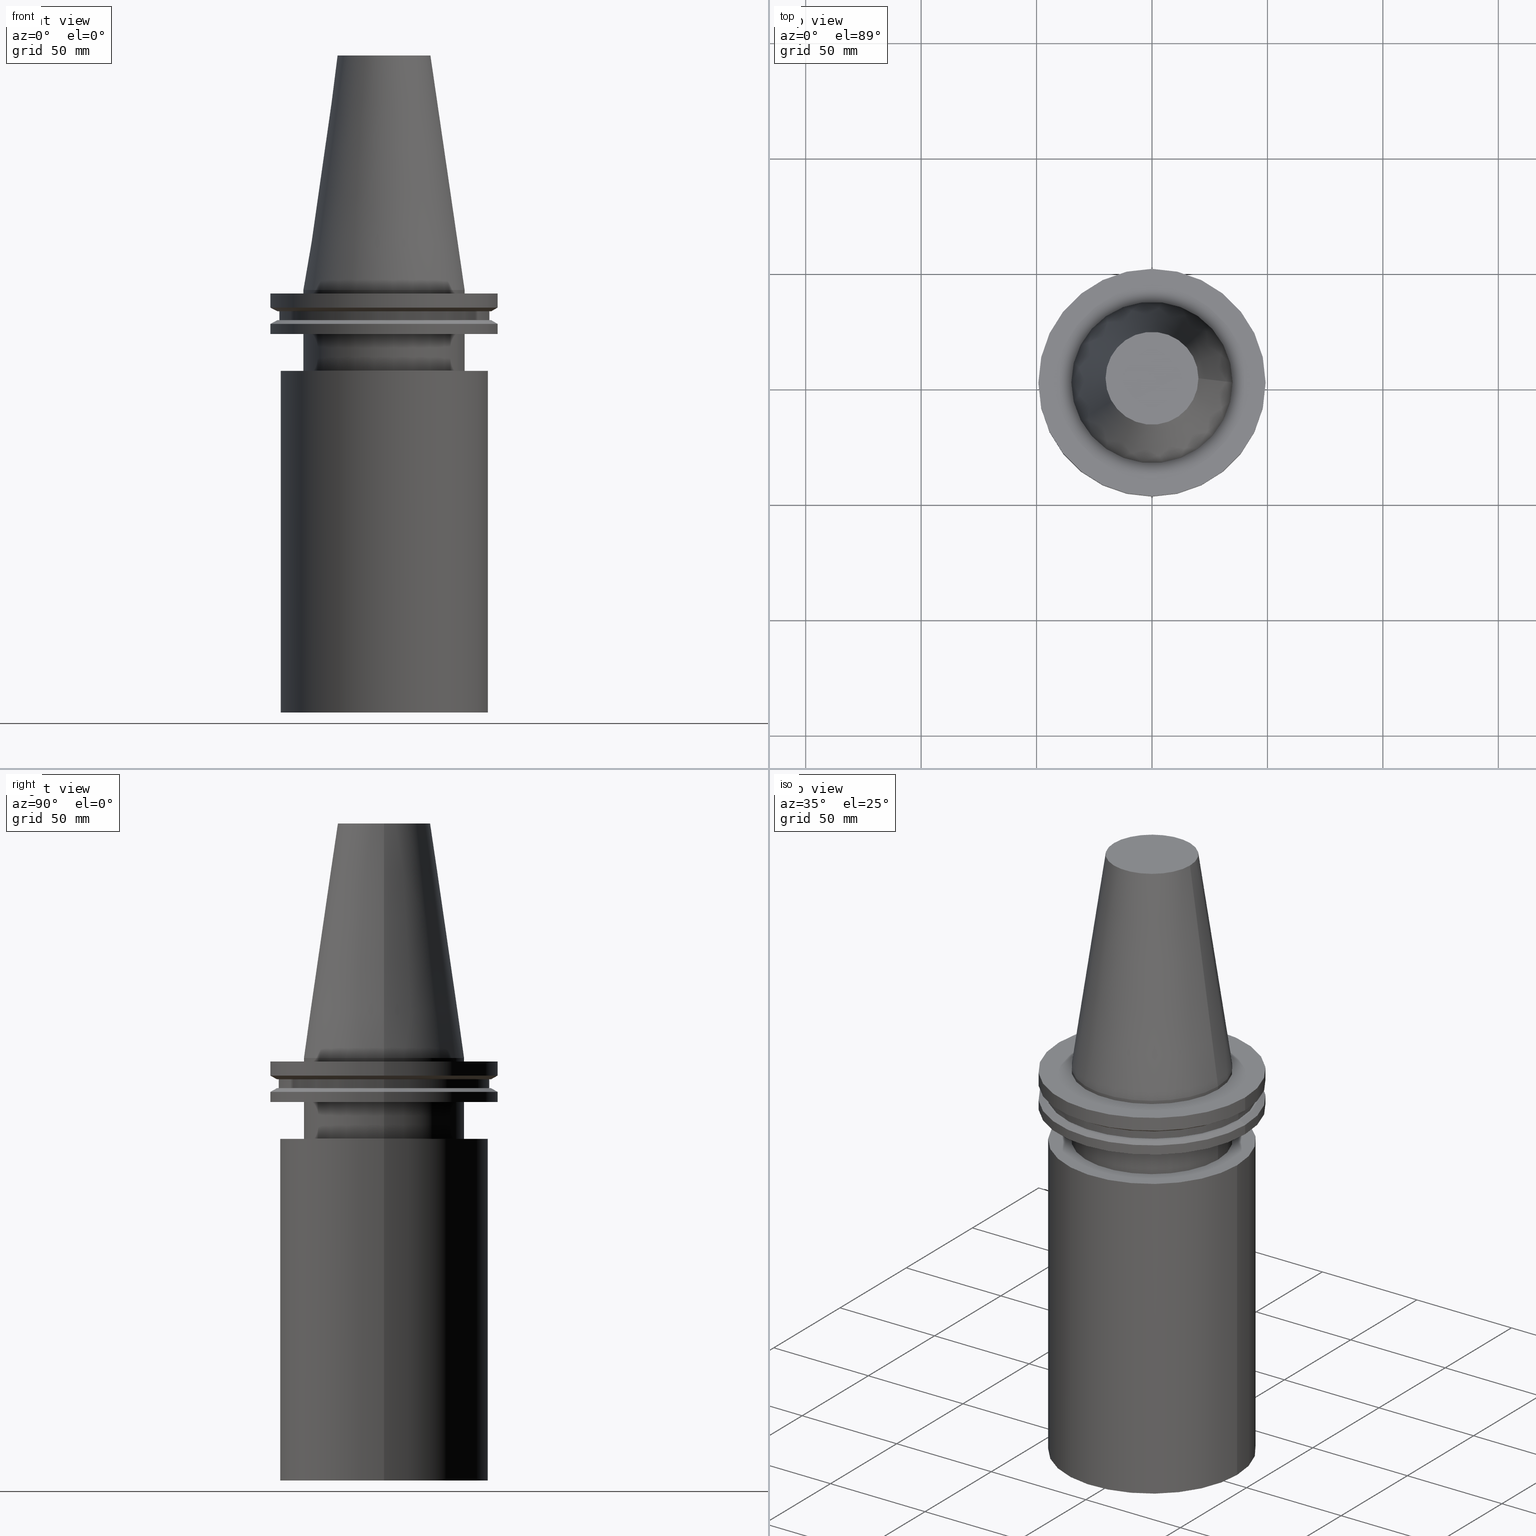
[diagram: canonical four-view strip — front | top / right | iso, engineering-drawing reading convention]
A machine part, canonical four-view strip (front | top / right | iso — engineering-drawing reading convention). The complete STEP part file that produces these views, byte-faithful:
ISO-10303-21;
HEADER;
FILE_DESCRIPTION (( 'STEP AP203' ),
    '1' );
FILE_NAME ('11.326.676.stp',
    '2022-03-09T15:01:14',
    ( '' ),
    ( '' ),
    'SwSTEP 2.0',
    'SolidWorks 2021',
    '' );
FILE_SCHEMA (( 'CONFIG_CONTROL_DESIGN' ));
ENDSEC;

DATA;
#1 = ORIENTED_EDGE ( 'NONE', *, *, #137, .T. ) ;
#2 = APPLICATION_PROTOCOL_DEFINITION ( 'international standard', 'config_control_design', 1994, #202 ) ;
#3 = DATE_TIME_ROLE ( 'creation_date' ) ;
#4 = APPROVAL_PERSON_ORGANIZATION ( #283, #140, #226 ) ;
#5 = EDGE_LOOP ( 'NONE', ( #182 ) ) ;
#6 = CARTESIAN_POINT ( 'NONE',  ( 45.64500000000000313, 0.000000000000000000, -13.05499999999999794 ) ) ;
#7 = FACE_OUTER_BOUND ( 'NONE', #145, .T. ) ;
#8 = VERTEX_POINT ( 'NONE', #158 ) ;
#9 = CYLINDRICAL_SURFACE ( 'NONE', #379, 45.00000000000000000 ) ;
#10 = FACE_OUTER_BOUND ( 'NONE', #5, .T. ) ;
#11 = CALENDAR_DATE ( 2022, 9, 3 ) ;
#12 = DIRECTION ( 'NONE',  ( -0.000000000000000000, -0.000000000000000000, 1.000000000000000000 ) ) ;
#13 = CARTESIAN_POINT ( 'NONE',  ( 0.000000000000000000, 0.000000000000000000, 101.5999999999999943 ) ) ;
#14 = CIRCLE ( 'NONE', #388, 45.00000000000000000 ) ;
#15 = FACE_OUTER_BOUND ( 'NONE', #353, .T. ) ;
#16 = COORDINATED_UNIVERSAL_TIME_OFFSET ( 6, 0, .BEHIND. ) ;
#17 = CYLINDRICAL_SURFACE ( 'NONE', #236, 34.92499999999999716 ) ;
#18 = DIRECTION ( 'NONE',  ( 1.000000000000000000, 0.000000000000000000, 0.000000000000000000 ) ) ;
#19 = EDGE_LOOP ( 'NONE', ( #91 ) ) ;
#20 = CLOSED_SHELL ( 'NONE', ( #390, #48, #323, #345, #354, #28, #67, #192, #35, #370, #96, #165, #288, #232, #60, #385 ) ) ;
#21 = ORIENTED_EDGE ( 'NONE', *, *, #377, .T. ) ;
#22 = DIRECTION ( 'NONE',  ( 1.000000000000000000, 0.000000000000000000, 0.000000000000000000 ) ) ;
#23 = EDGE_LOOP ( 'NONE', ( #293 ) ) ;
#24 = LOCAL_TIME ( 9, 1, 14.00000000000000000, #285 ) ;
#25 = DIRECTION ( 'NONE',  ( -0.000000000000000000, -0.000000000000000000, 1.000000000000000000 ) ) ;
#26 = EDGE_LOOP ( 'NONE', ( #175 ) ) ;
#27 = DIRECTION ( 'NONE',  ( -0.000000000000000000, -0.000000000000000000, 1.000000000000000000 ) ) ;
#28 = ADVANCED_FACE ( 'NONE', ( #334, #180 ), #298, .T. ) ;
#29 = PLANE ( 'NONE',  #113 ) ;
#30 = ORIENTED_EDGE ( 'NONE', *, *, #240, .F. ) ;
#31 = VERTEX_POINT ( 'NONE', #309 ) ;
#32 = AXIS2_PLACEMENT_3D ( 'NONE', #292, #92, #395 ) ;
#33 =( GEOMETRIC_REPRESENTATION_CONTEXT ( 3 ) GLOBAL_UNCERTAINTY_ASSIGNED_CONTEXT ( ( #342 ) ) GLOBAL_UNIT_ASSIGNED_CONTEXT ( ( #272, #333, #217 ) ) REPRESENTATION_CONTEXT ( 'NONE', 'WORKASPACE' ) );
#34 = EDGE_LOOP ( 'NONE', ( #391 ) ) ;
#35 = ADVANCED_FACE ( 'NONE', ( #7, #59 ), #68, .F. ) ;
#36 = PERSON_AND_ORGANIZATION_ROLE ( 'design_owner' ) ;
#37 = DIRECTION ( 'NONE',  ( -1.000000000000000000, 0.000000000000000000, -0.000000000000000000 ) ) ;
#38 = VERTEX_POINT ( 'NONE', #181 ) ;
#39 = DIRECTION ( 'NONE',  ( 1.000000000000000000, 0.000000000000000000, 0.000000000000000000 ) ) ;
#40 = FACE_BOUND ( 'NONE', #19, .T. ) ;
#41 = APPROVAL_DATE_TIME ( #381, #115 ) ;
#42 = EDGE_CURVE ( 'NONE', #384, #384, #223, .T. ) ;
#43 = DIRECTION ( 'NONE',  ( 1.000000000000000000, 0.000000000000000000, 0.000000000000000000 ) ) ;
#44 = CARTESIAN_POINT ( 'NONE',  ( 0.000000000000000000, 0.000000000000000000, 101.5999999999999943 ) ) ;
#45 = CIRCLE ( 'NONE', #107, 49.21500000000000341 ) ;
#46 = DIRECTION ( 'NONE',  ( -0.000000000000000000, -0.000000000000000000, 1.000000000000000000 ) ) ;
#47 = AXIS2_PLACEMENT_3D ( 'NONE', #258, #297, #201 ) ;
#48 = ADVANCED_FACE ( 'NONE', ( #154 ), #29, .F. ) ;
#49 = PERSON ( 'UNSPECIFIED', 'UNSPECIFIED', 'UNSPECIFIED', ('UNSPECIFIED'), ('UNSPECIFIED'), ('UNSPECIFIED') ) ;
#50 = FACE_OUTER_BOUND ( 'NONE', #296, .T. ) ;
#51 = CC_DESIGN_DATE_AND_TIME_ASSIGNMENT ( #160, #3, ( #275 ) ) ;
#52 = AXIS2_PLACEMENT_3D ( 'NONE', #122, #362, #93 ) ;
#53 = AXIS2_PLACEMENT_3D ( 'NONE', #237, #328, #18 ) ;
#54 = PRODUCT_DEFINITION_SHAPE ( 'NONE', 'NONE',  #275 ) ;
#55 = ORIENTED_EDGE ( 'NONE', *, *, #186, .T. ) ;
#56 = DIRECTION ( 'NONE',  ( -0.000000000000000000, -0.000000000000000000, 1.000000000000000000 ) ) ;
#57 = EDGE_LOOP ( 'NONE', ( #183 ) ) ;
#58 = CARTESIAN_POINT ( 'NONE',  ( 0.000000000000000000, 0.000000000000000000, -1.499999999999987566 ) ) ;
#59 = FACE_BOUND ( 'NONE', #299, .T. ) ;
#60 = ADVANCED_FACE ( 'NONE', ( #103, #161 ), #9, .T. ) ;
#61 = CC_DESIGN_SECURITY_CLASSIFICATION ( #132, ( #102 ) ) ;
#62 = FACE_BOUND ( 'NONE', #327, .T. ) ;
#63 = EDGE_LOOP ( 'NONE', ( #30 ) ) ;
#64 = COORDINATED_UNIVERSAL_TIME_OFFSET ( 6, 0, .BEHIND. ) ;
#65 = ORIENTED_EDGE ( 'NONE', *, *, #172, .T. ) ;
#66 = MECHANICAL_CONTEXT ( 'NONE', #202, 'mechanical' ) ;
#67 = ADVANCED_FACE ( 'NONE', ( #318, #106 ), #215, .F. ) ;
#68 = PLANE ( 'NONE',  #281 ) ;
#69 = CIRCLE ( 'NONE', #289, 45.00000000000000000 ) ;
#70 = DIRECTION ( 'NONE',  ( 0.000000000000000000, 0.000000000000000000, 1.000000000000000000 ) ) ;
#71 = AXIS2_PLACEMENT_3D ( 'NONE', #198, #27, #234 ) ;
#72 = CARTESIAN_POINT ( 'NONE',  ( 0.000000000000000000, 0.000000000000000000, -13.05499999999999794 ) ) ;
#73 = VERTEX_POINT ( 'NONE', #187 ) ;
#74 = DIRECTION ( 'NONE',  ( -0.000000000000000000, -0.000000000000000000, 1.000000000000000000 ) ) ;
#75 = CARTESIAN_POINT ( 'NONE',  ( 0.000000000000000000, 0.000000000000000000, -7.602389855251287187 ) ) ;
#76 = AXIS2_PLACEMENT_3D ( 'NONE', #252, #375, #104 ) ;
#77 = DIRECTION ( 'NONE',  ( -1.000000000000000000, 0.000000000000000000, -0.000000000000000000 ) ) ;
#78 = DIRECTION ( 'NONE',  ( 1.000000000000000000, 0.000000000000000000, 0.000000000000000000 ) ) ;
#79 = EDGE_CURVE ( 'NONE', #205, #205, #138, .T. ) ;
#80 = DIRECTION ( 'NONE',  ( 0.000000000000000000, -0.000000000000000000, 1.000000000000000000 ) ) ;
#81 = COORDINATED_UNIVERSAL_TIME_OFFSET ( 6, 0, .BEHIND. ) ;
#82 = CIRCLE ( 'NONE', #372, 49.21499999999999631 ) ;
#83 = DIRECTION ( 'NONE',  ( 1.000000000000000000, 0.000000000000000000, 0.000000000000000000 ) ) ;
#84 = APPROVAL ( #220, 'UNSPECIFIED' ) ;
#85 = CC_DESIGN_APPROVAL ( #140, ( #132 ) ) ;
#86 = ORIENTED_EDGE ( 'NONE', *, *, #42, .T. ) ;
#87 = EDGE_CURVE ( 'NONE', #176, #176, #14, .T. ) ;
#88 = AXIS2_PLACEMENT_3D ( 'NONE', #121, #56, #83 ) ;
#89 = DIRECTION ( 'NONE',  ( 1.000000000000000000, 0.000000000000000000, 0.000000000000000000 ) ) ;
#90 = DIRECTION ( 'NONE',  ( -0.000000000000000000, -0.000000000000000000, 1.000000000000000000 ) ) ;
#91 = ORIENTED_EDGE ( 'NONE', *, *, #42, .F. ) ;
#92 = DIRECTION ( 'NONE',  ( -0.000000000000000000, -0.000000000000000000, 1.000000000000000000 ) ) ;
#93 = DIRECTION ( 'NONE',  ( 1.000000000000000000, 0.000000000000000000, 0.000000000000000000 ) ) ;
#94 = APPROVAL_DATE_TIME ( #363, #84 ) ;
#95 = EDGE_LOOP ( 'NONE', ( #1 ) ) ;
#96 = ADVANCED_FACE ( 'NONE', ( #15, #10 ), #136, .T. ) ;
#97 = PERSON_AND_ORGANIZATION_ROLE ( 'creator' ) ;
#98 = ORIENTED_EDGE ( 'NONE', *, *, #79, .F. ) ;
#99 = MANIFOLD_SOLID_BREP ( 'CKB', #20 ) ;
#100 = ORIENTED_EDGE ( 'NONE', *, *, #109, .T. ) ;
#101 = VERTEX_POINT ( 'NONE', #367 ) ;
#102 = PRODUCT_DEFINITION_FORMATION_WITH_SPECIFIED_SOURCE ( 'ANY', '', #300, .NOT_KNOWN. ) ;
#103 = FACE_OUTER_BOUND ( 'NONE', #332, .T. ) ;
#104 = DIRECTION ( 'NONE',  ( -1.000000000000000000, 0.000000000000000000, -0.000000000000000000 ) ) ;
#105 = PERSON_AND_ORGANIZATION ( #49, #356 ) ;
#106 = FACE_OUTER_BOUND ( 'NONE', #213, .T. ) ;
#107 = AXIS2_PLACEMENT_3D ( 'NONE', #75, #153, #151 ) ;
#108 = CARTESIAN_POINT ( 'NONE',  ( 0.000000000000000000, 0.000000000000000000, -35.00000000000000000 ) ) ;
#109 = EDGE_CURVE ( 'NONE', #351, #351, #208, .T. ) ;
#110 = CYLINDRICAL_SURFACE ( 'NONE', #150, 49.21499999999998920 ) ;
#111 = FACE_OUTER_BOUND ( 'NONE', #34, .T. ) ;
#112 = CALENDAR_DATE ( 2022, 9, 3 ) ;
#113 = AXIS2_PLACEMENT_3D ( 'NONE', #248, #167, #37 ) ;
#114 = ORIENTED_EDGE ( 'NONE', *, *, #87, .F. ) ;
#115 = APPROVAL ( #212, 'UNSPECIFIED' ) ;
#116 = DIRECTION ( 'NONE',  ( -0.000000000000000000, -0.000000000000000000, 1.000000000000000000 ) ) ;
#117 = CIRCLE ( 'NONE', #273, 46.43919780457007818 ) ;
#118 = CIRCLE ( 'NONE', #393, 20.10819343178871321 ) ;
#119 = DIRECTION ( 'NONE',  ( 1.000000000000000000, 0.000000000000000000, 0.000000000000000000 ) ) ;
#120 = ORIENTED_EDGE ( 'NONE', *, *, #304, .F. ) ;
#121 = CARTESIAN_POINT ( 'NONE',  ( 0.000000000000000000, 0.000000000000000000, 101.5999999999999943 ) ) ;
#122 = CARTESIAN_POINT ( 'NONE',  ( 0.000000000000000000, 0.000000000000000000, -1.499999999999987566 ) ) ;
#123 = PERSON_AND_ORGANIZATION ( #49, #356 ) ;
#124 = PERSON_AND_ORGANIZATION ( #49, #356 ) ;
#125 = ORIENTED_EDGE ( 'NONE', *, *, #338, .F. ) ;
#126 = VERTEX_POINT ( 'NONE', #129 ) ;
#127 = ORIENTED_EDGE ( 'NONE', *, *, #377, .F. ) ;
#128 = DESIGN_CONTEXT ( 'detailed design', #317, 'design' ) ;
#129 = CARTESIAN_POINT ( 'NONE',  ( 20.10819343178871321, 0.000000000000000000, 101.5999999999999801 ) ) ;
#130 = DIRECTION ( 'NONE',  ( -0.000000000000000000, -0.000000000000000000, 1.000000000000000000 ) ) ;
#131 = DIRECTION ( 'NONE',  ( 1.000000000000000000, 0.000000000000000000, 0.000000000000000000 ) ) ;
#132 = SECURITY_CLASSIFICATION ( '', '', #259 ) ;
#133 = PLANE ( 'NONE',  #76 ) ;
#134 = DATE_AND_TIME ( #11, #282 ) ;
#135 = DIRECTION ( 'NONE',  ( 1.000000000000000000, 0.000000000000000000, 0.000000000000000000 ) ) ;
#136 = CYLINDRICAL_SURFACE ( 'NONE', #329, 49.21499999999999631 ) ;
#137 = EDGE_CURVE ( 'NONE', #184, #184, #249, .T. ) ;
#138 = CIRCLE ( 'NONE', #307, 34.92499999999999716 ) ;
#139 = DIRECTION ( 'NONE',  ( 1.000000000000000000, 0.000000000000000000, 0.000000000000000000 ) ) ;
#140 = APPROVAL ( #344, 'UNSPECIFIED' ) ;
#141 = FACE_OUTER_BOUND ( 'NONE', #271, .T. ) ;
#142 = DIRECTION ( 'NONE',  ( 1.000000000000000000, 0.000000000000000000, 0.000000000000000000 ) ) ;
#143 = AXIS2_PLACEMENT_3D ( 'NONE', #13, #308, #39 ) ;
#144 = ORIENTED_EDGE ( 'NONE', *, *, #257, .T. ) ;
#145 = EDGE_LOOP ( 'NONE', ( #360 ) ) ;
#146 = EDGE_CURVE ( 'NONE', #31, #31, #69, .T. ) ;
#147 = FACE_OUTER_BOUND ( 'NONE', #159, .T. ) ;
#148 = AXIS2_PLACEMENT_3D ( 'NONE', #302, #269, #209 ) ;
#149 = DIRECTION ( 'NONE',  ( 0.000000000000000000, -0.000000000000000000, 1.000000000000000000 ) ) ;
#150 = AXIS2_PLACEMENT_3D ( 'NONE', #204, #90, #349 ) ;
#151 = DIRECTION ( 'NONE',  ( 1.000000000000000000, 0.000000000000000000, 0.000000000000000000 ) ) ;
#152 = EDGE_LOOP ( 'NONE', ( #277 ) ) ;
#153 = DIRECTION ( 'NONE',  ( -0.000000000000000000, -0.000000000000000000, 1.000000000000000000 ) ) ;
#154 = FACE_OUTER_BOUND ( 'NONE', #263, .T. ) ;
#155 = CALENDAR_DATE ( 2022, 9, 3 ) ;
#156 = EDGE_LOOP ( 'NONE', ( #125 ) ) ;
#157 = CC_DESIGN_APPROVAL ( #115, ( #102 ) ) ;
#158 = CARTESIAN_POINT ( 'NONE',  ( 49.21499999999998920, 0.000000000000000000, -14.65761014474876944 ) ) ;
#159 = EDGE_LOOP ( 'NONE', ( #366 ) ) ;
#160 = DATE_AND_TIME ( #155, #250 ) ;
#161 = FACE_OUTER_BOUND ( 'NONE', #325, .T. ) ;
#162 = EDGE_CURVE ( 'NONE', #38, #38, #117, .T. ) ;
#163 = FACE_BOUND ( 'NONE', #389, .T. ) ;
#164 = FACE_OUTER_BOUND ( 'NONE', #152, .T. ) ;
#165 = ADVANCED_FACE ( 'NONE', ( #40, #164 ), #376, .F. ) ;
#166 = DIRECTION ( 'NONE',  ( 1.000000000000000000, 0.000000000000000000, 0.000000000000000000 ) ) ;
#167 = DIRECTION ( 'NONE',  ( 0.000000000000000000, 0.000000000000000000, -1.000000000000000000 ) ) ;
#168 = CIRCLE ( 'NONE', #71, 34.92499999999999716 ) ;
#169 = DIRECTION ( 'NONE',  ( 0.000000000000000000, -0.000000000000000000, 1.000000000000000000 ) ) ;
#170 = CARTESIAN_POINT ( 'NONE',  ( 45.64500000000000313, 0.000000000000000000, -9.204999999999991189 ) ) ;
#171 = ADVANCED_BREP_SHAPE_REPRESENTATION ( '11.326.676', ( #99, #178 ), #33 ) ;
#172 = EDGE_CURVE ( 'NONE', #189, #189, #261, .T. ) ;
#173 = ORIENTED_EDGE ( 'NONE', *, *, #162, .T. ) ;
#174 = CYLINDRICAL_SURFACE ( 'NONE', #88, 34.92499999999999005 ) ;
#175 = ORIENTED_EDGE ( 'NONE', *, *, #311, .T. ) ;
#176 = VERTEX_POINT ( 'NONE', #321 ) ;
#177 = CARTESIAN_POINT ( 'NONE',  ( 0.000000000000000000, 46.43919780457007818, -9.204999999999998295 ) ) ;
#178 = AXIS2_PLACEMENT_3D ( 'NONE', #335, #70, #131 ) ;
#179 = CARTESIAN_POINT ( 'NONE',  ( 0.000000000000000000, 0.000000000000000000, -14.65761014474876944 ) ) ;
#180 = FACE_OUTER_BOUND ( 'NONE', #26, .T. ) ;
#181 = CARTESIAN_POINT ( 'NONE',  ( 46.43919780457007818, 0.000000000000000000, -9.204999999999991189 ) ) ;
#182 = ORIENTED_EDGE ( 'NONE', *, *, #240, .T. ) ;
#183 = ORIENTED_EDGE ( 'NONE', *, *, #311, .F. ) ;
#184 = VERTEX_POINT ( 'NONE', #365 ) ;
#185 = CARTESIAN_POINT ( 'NONE',  ( 0.000000000000000000, 0.000000000000000000, 0.000000000000000000 ) ) ;
#186 = EDGE_CURVE ( 'NONE', #214, #214, #313, .T. ) ;
#187 = CARTESIAN_POINT ( 'NONE',  ( 34.92499999999999716, 0.000000000000000000, -19.04999999999999716 ) ) ;
#188 = FACE_OUTER_BOUND ( 'NONE', #305, .T. ) ;
#189 = VERTEX_POINT ( 'NONE', #369 ) ;
#190 = DIRECTION ( 'NONE',  ( 1.000000000000000000, 0.000000000000000000, 0.000000000000000000 ) ) ;
#191 = PERSON_AND_ORGANIZATION_ROLE ( 'classification_officer' ) ;
#192 = ADVANCED_FACE ( 'NONE', ( #373, #188 ), #346, .T. ) ;
#193 = AXIS2_PLACEMENT_3D ( 'NONE', #179, #116, #207 ) ;
#194 = CARTESIAN_POINT ( 'NONE',  ( 0.000000000000000000, 45.64500000000000313, -13.05499999999999794 ) ) ;
#195 = DATE_TIME_ROLE ( 'classification_date' ) ;
#196 = CC_DESIGN_PERSON_AND_ORGANIZATION_ASSIGNMENT ( #105, #191, ( #132 ) ) ;
#197 = DIRECTION ( 'NONE',  ( 1.000000000000000000, 0.000000000000000000, 0.000000000000000000 ) ) ;
#198 = CARTESIAN_POINT ( 'NONE',  ( 0.000000000000000000, 0.000000000000000000, -19.04999999999999716 ) ) ;
#199 = APPROVAL_DATE_TIME ( #134, #140 ) ;
#200 = AXIS2_PLACEMENT_3D ( 'NONE', #194, #284, #279 ) ;
#201 = DIRECTION ( 'NONE',  ( -1.000000000000000000, 0.000000000000000000, 0.000000000000000000 ) ) ;
#202 = APPLICATION_CONTEXT ( 'configuration controlled 3d designs of mechanical parts and assemblies' ) ;
#203 = AXIS2_PLACEMENT_3D ( 'NONE', #222, #286, #219 ) ;
#204 = CARTESIAN_POINT ( 'NONE',  ( 0.000000000000000000, 0.000000000000000000, 101.5999999999999943 ) ) ;
#205 = VERTEX_POINT ( 'NONE', #326 ) ;
#206 = ORIENTED_EDGE ( 'NONE', *, *, #146, .T. ) ;
#207 = DIRECTION ( 'NONE',  ( 1.000000000000000000, 0.000000000000000000, 0.000000000000000000 ) ) ;
#208 = CIRCLE ( 'NONE', #203, 45.64500000000000313 ) ;
#209 = DIRECTION ( 'NONE',  ( -1.000000000000000000, 0.000000000000000000, 0.000000000000000000 ) ) ;
#210 = CARTESIAN_POINT ( 'NONE',  ( 49.21499999999999631, 0.000000000000000000, -1.499999999999987566 ) ) ;
#211 = EDGE_LOOP ( 'NONE', ( #114 ) ) ;
#212 = APPROVAL_STATUS ( 'not_yet_approved' ) ;
#213 = EDGE_LOOP ( 'NONE', ( #65 ) ) ;
#214 = VERTEX_POINT ( 'NONE', #278 ) ;
#215 = PLANE ( 'NONE',  #200 ) ;
#216 = AXIS2_PLACEMENT_3D ( 'NONE', #361, #169, #291 ) ;
#217 =( NAMED_UNIT ( * ) SI_UNIT ( $, .STERADIAN. ) SOLID_ANGLE_UNIT ( ) );
#218 = CC_DESIGN_PERSON_AND_ORGANIZATION_ASSIGNMENT ( #224, #350, ( #102 ) ) ;
#219 = DIRECTION ( 'NONE',  ( 1.000000000000000000, 0.000000000000000000, 0.000000000000000000 ) ) ;
#220 = APPROVAL_STATUS ( 'not_yet_approved' ) ;
#221 = CARTESIAN_POINT ( 'NONE',  ( 0.000000000000000000, 0.000000000000000000, -19.04999999999999716 ) ) ;
#222 = CARTESIAN_POINT ( 'NONE',  ( 0.000000000000000000, 0.000000000000000000, -9.204999999999991189 ) ) ;
#223 = CIRCLE ( 'NONE', #52, 34.92499999999999005 ) ;
#224 = PERSON_AND_ORGANIZATION ( #49, #356 ) ;
#225 = DIRECTION ( 'NONE',  ( 0.000000000000000000, 0.000000000000000000, -1.000000000000000000 ) ) ;
#226 = APPROVAL_ROLE ( '' ) ;
#227 = FACE_BOUND ( 'NONE', #387, .T. ) ;
#228 = PERSON_AND_ORGANIZATION_ROLE ( 'creator' ) ;
#229 = FACE_OUTER_BOUND ( 'NONE', #63, .T. ) ;
#230 = LOCAL_TIME ( 9, 1, 14.00000000000000000, #241 ) ;
#231 = ORIENTED_EDGE ( 'NONE', *, *, #257, .F. ) ;
#232 = ADVANCED_FACE ( 'NONE', ( #163, #280 ), #133, .F. ) ;
#233 = PRODUCT_RELATED_PRODUCT_CATEGORY ( 'detail', '', ( #300 ) ) ;
#234 = DIRECTION ( 'NONE',  ( 1.000000000000000000, 0.000000000000000000, 0.000000000000000000 ) ) ;
#235 = AXIS2_PLACEMENT_3D ( 'NONE', #221, #287, #139 ) ;
#236 = AXIS2_PLACEMENT_3D ( 'NONE', #386, #268, #22 ) ;
#237 = CARTESIAN_POINT ( 'NONE',  ( 0.000000000000000000, 0.000000000000000000, -9.204999999999991189 ) ) ;
#238 = ORIENTED_EDGE ( 'NONE', *, *, #87, .T. ) ;
#239 = PLANE ( 'NONE',  #352 ) ;
#240 = EDGE_CURVE ( 'NONE', #101, #101, #45, .T. ) ;
#241 = COORDINATED_UNIVERSAL_TIME_OFFSET ( 6, 0, .BEHIND. ) ;
#242 = AXIS2_PLACEMENT_3D ( 'NONE', #185, #74, #43 ) ;
#243 = EDGE_LOOP ( 'NONE', ( #173 ) ) ;
#244 = CIRCLE ( 'NONE', #193, 49.21499999999998920 ) ;
#245 = VERTEX_POINT ( 'NONE', #6 ) ;
#246 = EDGE_LOOP ( 'NONE', ( #206 ) ) ;
#247 = ORIENTED_EDGE ( 'NONE', *, *, #338, .T. ) ;
#248 = CARTESIAN_POINT ( 'NONE',  ( 0.000000000000000000, 20.10819343178871321, 101.5999999999999943 ) ) ;
#249 = CIRCLE ( 'NONE', #235, 49.21499999999998920 ) ;
#250 = LOCAL_TIME ( 9, 1, 14.00000000000000000, #64 ) ;
#251 = APPLICATION_PROTOCOL_DEFINITION ( 'international standard', 'config_control_design', 1994, #317 ) ;
#252 = CARTESIAN_POINT ( 'NONE',  ( 0.000000000000000000, 0.000000000000000000, -35.00000000000000000 ) ) ;
#253 = CARTESIAN_POINT ( 'NONE',  ( 0.000000000000000000, 0.000000000000000000, -183.0000000000000000 ) ) ;
#254 = CARTESIAN_POINT ( 'NONE',  ( 0.000000000000000000, 0.000000000000000000, 0.000000000000000000 ) ) ;
#255 = DIRECTION ( 'NONE',  ( -0.000000000000000000, -0.000000000000000000, 1.000000000000000000 ) ) ;
#256 = CALENDAR_DATE ( 2022, 9, 3 ) ;
#257 = EDGE_CURVE ( 'NONE', #245, #245, #265, .T. ) ;
#258 = CARTESIAN_POINT ( 'NONE',  ( 0.000000000000000000, 0.000000000000000000, 0.000000000000000000 ) ) ;
#259 = SECURITY_CLASSIFICATION_LEVEL ( 'unclassified' ) ;
#260 = PLANE ( 'NONE',  #216 ) ;
#261 = CIRCLE ( 'NONE', #371, 46.43919780457007818 ) ;
#262 = CC_DESIGN_APPROVAL ( #84, ( #275 ) ) ;
#263 = EDGE_LOOP ( 'NONE', ( #21 ) ) ;
#264 = FACE_OUTER_BOUND ( 'NONE', #57, .T. ) ;
#265 = CIRCLE ( 'NONE', #32, 45.64500000000000313 ) ;
#266 = APPROVAL_PERSON_ORGANIZATION ( #374, #84, #339 ) ;
#267 = EDGE_LOOP ( 'NONE', ( #274 ) ) ;
#268 = DIRECTION ( 'NONE',  ( -0.000000000000000000, -0.000000000000000000, 1.000000000000000000 ) ) ;
#269 = DIRECTION ( 'NONE',  ( 0.000000000000000000, 0.000000000000000000, -1.000000000000000000 ) ) ;
#270 = CARTESIAN_POINT ( 'NONE',  ( 0.000000000000000000, 49.21499999999998920, -19.04999999999999716 ) ) ;
#271 = EDGE_LOOP ( 'NONE', ( #55 ) ) ;
#272 =( LENGTH_UNIT ( ) NAMED_UNIT ( * ) SI_UNIT ( .MILLI., .METRE. ) );
#273 = AXIS2_PLACEMENT_3D ( 'NONE', #336, #337, #190 ) ;
#274 = ORIENTED_EDGE ( 'NONE', *, *, #109, .F. ) ;
#275 = PRODUCT_DEFINITION ( 'UNKNOWN', '', #102, #128 ) ;
#276 = APPROVAL_PERSON_ORGANIZATION ( #124, #115, #347 ) ;
#277 = ORIENTED_EDGE ( 'NONE', *, *, #304, .T. ) ;
#278 = CARTESIAN_POINT ( 'NONE',  ( 34.92499999999999005, 0.000000000000000000, 0.000000000000000000 ) ) ;
#279 = DIRECTION ( 'NONE',  ( -1.000000000000000000, 0.000000000000000000, -0.000000000000000000 ) ) ;
#280 = FACE_OUTER_BOUND ( 'NONE', #246, .T. ) ;
#281 = AXIS2_PLACEMENT_3D ( 'NONE', #177, #149, #368 ) ;
#282 = LOCAL_TIME ( 9, 1, 14.00000000000000000, #81 ) ;
#283 = PERSON_AND_ORGANIZATION ( #49, #356 ) ;
#284 = DIRECTION ( 'NONE',  ( 0.000000000000000000, 0.000000000000000000, -1.000000000000000000 ) ) ;
#285 = COORDINATED_UNIVERSAL_TIME_OFFSET ( 6, 0, .BEHIND. ) ;
#286 = DIRECTION ( 'NONE',  ( -0.000000000000000000, -0.000000000000000000, 1.000000000000000000 ) ) ;
#287 = DIRECTION ( 'NONE',  ( -0.000000000000000000, -0.000000000000000000, 1.000000000000000000 ) ) ;
#288 = ADVANCED_FACE ( 'NONE', ( #147, #357 ), #174, .T. ) ;
#289 = AXIS2_PLACEMENT_3D ( 'NONE', #108, #255, #312 ) ;
#290 = DATE_AND_TIME ( #112, #314 ) ;
#291 = DIRECTION ( 'NONE',  ( 1.000000000000000000, 0.000000000000000000, 0.000000000000000000 ) ) ;
#292 = CARTESIAN_POINT ( 'NONE',  ( 0.000000000000000000, 0.000000000000000000, -13.05499999999999794 ) ) ;
#293 = ORIENTED_EDGE ( 'NONE', *, *, #172, .F. ) ;
#294 = EDGE_LOOP ( 'NONE', ( #231 ) ) ;
#295 = FACE_OUTER_BOUND ( 'NONE', #95, .T. ) ;
#296 = EDGE_LOOP ( 'NONE', ( #330 ) ) ;
#297 = DIRECTION ( 'NONE',  ( 0.000000000000000000, 0.000000000000000000, -1.000000000000000000 ) ) ;
#298 = CONICAL_SURFACE ( 'NONE', #148, 49.21499999999998920, 1.047197551196554333 ) ;
#299 = EDGE_LOOP ( 'NONE', ( #100 ) ) ;
#300 = PRODUCT ( '11.326.676', '11.326.676', '', ( #66 ) ) ;
#301 = FACE_OUTER_BOUND ( 'NONE', #156, .T. ) ;
#302 = CARTESIAN_POINT ( 'NONE',  ( 0.000000000000000000, 0.000000000000000000, -14.65761014474876944 ) ) ;
#303 = CALENDAR_DATE ( 2022, 9, 3 ) ;
#304 = EDGE_CURVE ( 'NONE', #306, #306, #82, .T. ) ;
#305 = EDGE_LOOP ( 'NONE', ( #144 ) ) ;
#306 = VERTEX_POINT ( 'NONE', #210 ) ;
#307 = AXIS2_PLACEMENT_3D ( 'NONE', #315, #378, #78 ) ;
#308 = DIRECTION ( 'NONE',  ( -0.000000000000000000, -0.000000000000000000, 1.000000000000000000 ) ) ;
#309 = CARTESIAN_POINT ( 'NONE',  ( 45.00000000000000000, 0.000000000000000000, -35.00000000000000000 ) ) ;
#310 = DIRECTION ( 'NONE',  ( -0.000000000000000000, -0.000000000000000000, 1.000000000000000000 ) ) ;
#311 = EDGE_CURVE ( 'NONE', #8, #8, #244, .T. ) ;
#312 = DIRECTION ( 'NONE',  ( 1.000000000000000000, 0.000000000000000000, 0.000000000000000000 ) ) ;
#313 = CIRCLE ( 'NONE', #242, 34.92499999999999005 ) ;
#314 = LOCAL_TIME ( 9, 1, 14.00000000000000000, #16 ) ;
#315 = CARTESIAN_POINT ( 'NONE',  ( 0.000000000000000000, 0.000000000000000000, -35.00000000000000000 ) ) ;
#316 = CC_DESIGN_PERSON_AND_ORGANIZATION_ASSIGNMENT ( #123, #36, ( #300 ) ) ;
#317 = APPLICATION_CONTEXT ( 'configuration controlled 3d designs of mechanical parts and assemblies' ) ;
#318 = FACE_BOUND ( 'NONE', #294, .T. ) ;
#319 = FACE_OUTER_BOUND ( 'NONE', #211, .T. ) ;
#320 = SHAPE_DEFINITION_REPRESENTATION ( #54, #171 ) ;
#321 = CARTESIAN_POINT ( 'NONE',  ( 45.00000000000000000, 0.000000000000000000, -183.0000000000000000 ) ) ;
#322 = EDGE_LOOP ( 'NONE', ( #86 ) ) ;
#323 = ADVANCED_FACE ( 'NONE', ( #301, #111 ), #17, .T. ) ;
#324 = FACE_BOUND ( 'NONE', #243, .T. ) ;
#325 = EDGE_LOOP ( 'NONE', ( #238 ) ) ;
#326 = CARTESIAN_POINT ( 'NONE',  ( 34.92499999999999716, 0.000000000000000000, -35.00000000000000000 ) ) ;
#327 = EDGE_LOOP ( 'NONE', ( #127 ) ) ;
#328 = DIRECTION ( 'NONE',  ( -0.000000000000000000, -0.000000000000000000, 1.000000000000000000 ) ) ;
#329 = AXIS2_PLACEMENT_3D ( 'NONE', #44, #12, #135 ) ;
#330 = ORIENTED_EDGE ( 'NONE', *, *, #137, .F. ) ;
#331 = PERSON_AND_ORGANIZATION ( #49, #356 ) ;
#332 = EDGE_LOOP ( 'NONE', ( #364 ) ) ;
#333 =( NAMED_UNIT ( * ) PLANE_ANGLE_UNIT ( ) SI_UNIT ( $, .RADIAN. ) );
#334 = FACE_BOUND ( 'NONE', #23, .T. ) ;
#335 = CARTESIAN_POINT ( 'NONE',  ( 0.000000000000000000, 0.000000000000000000, 0.000000000000000000 ) ) ;
#336 = CARTESIAN_POINT ( 'NONE',  ( 0.000000000000000000, 0.000000000000000000, -9.204999999999991189 ) ) ;
#337 = DIRECTION ( 'NONE',  ( -0.000000000000000000, -0.000000000000000000, 1.000000000000000000 ) ) ;
#338 = EDGE_CURVE ( 'NONE', #73, #73, #168, .T. ) ;
#339 = APPROVAL_ROLE ( '' ) ;
#340 = DIRECTION ( 'NONE',  ( -0.000000000000000000, -0.000000000000000000, 1.000000000000000000 ) ) ;
#341 = CARTESIAN_POINT ( 'NONE',  ( 0.000000000000000000, 49.21499999999999631, -1.499999999999992895 ) ) ;
#342 = UNCERTAINTY_MEASURE_WITH_UNIT (LENGTH_MEASURE( 1.000000000000000082E-05 ), #272, 'distance_accuracy_value', 'NONE');
#343 = CONICAL_SURFACE ( 'NONE', #53, 46.43919780457007818, 1.047197551196575205 ) ;
#344 = APPROVAL_STATUS ( 'not_yet_approved' ) ;
#345 = ADVANCED_FACE ( 'NONE', ( #50, #227 ), #239, .F. ) ;
#346 = CYLINDRICAL_SURFACE ( 'NONE', #143, 45.64500000000000313 ) ;
#347 = APPROVAL_ROLE ( '' ) ;
#348 = CC_DESIGN_DATE_AND_TIME_ASSIGNMENT ( #290, #195, ( #132 ) ) ;
#349 = DIRECTION ( 'NONE',  ( 1.000000000000000000, 0.000000000000000000, 0.000000000000000000 ) ) ;
#350 = PERSON_AND_ORGANIZATION_ROLE ( 'design_supplier' ) ;
#351 = VERTEX_POINT ( 'NONE', #170 ) ;
#352 = AXIS2_PLACEMENT_3D ( 'NONE', #270, #80, #89 ) ;
#353 = EDGE_LOOP ( 'NONE', ( #120 ) ) ;
#354 = ADVANCED_FACE ( 'NONE', ( #264, #295 ), #110, .T. ) ;
#355 = CC_DESIGN_PERSON_AND_ORGANIZATION_ASSIGNMENT ( #331, #97, ( #275 ) ) ;
#356 = ORGANIZATION ( 'UNSPECIFIED', 'UNSPECIFIED', '' ) ;
#357 = FACE_OUTER_BOUND ( 'NONE', #322, .T. ) ;
#358 = CARTESIAN_POINT ( 'NONE',  ( 34.92499999999999005, 0.000000000000000000, -1.499999999999987566 ) ) ;
#359 = CC_DESIGN_PERSON_AND_ORGANIZATION_ASSIGNMENT ( #383, #228, ( #102 ) ) ;
#360 = ORIENTED_EDGE ( 'NONE', *, *, #162, .F. ) ;
#361 = CARTESIAN_POINT ( 'NONE',  ( 0.000000000000000000, 45.00000000000000000, -183.0000000000000000 ) ) ;
#362 = DIRECTION ( 'NONE',  ( -0.000000000000000000, -0.000000000000000000, 1.000000000000000000 ) ) ;
#363 = DATE_AND_TIME ( #303, #230 ) ;
#364 = ORIENTED_EDGE ( 'NONE', *, *, #146, .F. ) ;
#365 = CARTESIAN_POINT ( 'NONE',  ( 49.21499999999998920, 0.000000000000000000, -19.04999999999999716 ) ) ;
#366 = ORIENTED_EDGE ( 'NONE', *, *, #186, .F. ) ;
#367 = CARTESIAN_POINT ( 'NONE',  ( 49.21500000000000341, 0.000000000000000000, -7.602389855251287187 ) ) ;
#368 = DIRECTION ( 'NONE',  ( 1.000000000000000000, 0.000000000000000000, 0.000000000000000000 ) ) ;
#369 = CARTESIAN_POINT ( 'NONE',  ( 46.43919780457007818, 0.000000000000000000, -13.05499999999999794 ) ) ;
#370 = ADVANCED_FACE ( 'NONE', ( #229, #324 ), #343, .T. ) ;
#371 = AXIS2_PLACEMENT_3D ( 'NONE', #72, #340, #166 ) ;
#372 = AXIS2_PLACEMENT_3D ( 'NONE', #58, #46, #142 ) ;
#373 = FACE_OUTER_BOUND ( 'NONE', #267, .T. ) ;
#374 = PERSON_AND_ORGANIZATION ( #49, #356 ) ;
#375 = DIRECTION ( 'NONE',  ( 0.000000000000000000, 0.000000000000000000, -1.000000000000000000 ) ) ;
#376 = PLANE ( 'NONE',  #392 ) ;
#377 = EDGE_CURVE ( 'NONE', #126, #126, #118, .T. ) ;
#378 = DIRECTION ( 'NONE',  ( -0.000000000000000000, -0.000000000000000000, 1.000000000000000000 ) ) ;
#379 = AXIS2_PLACEMENT_3D ( 'NONE', #254, #310, #382 ) ;
#380 = CONICAL_SURFACE ( 'NONE', #47, 34.92499999999999005, 0.1448138465474119452 ) ;
#381 = DATE_AND_TIME ( #256, #24 ) ;
#382 = DIRECTION ( 'NONE',  ( 1.000000000000000000, 0.000000000000000000, 0.000000000000000000 ) ) ;
#383 = PERSON_AND_ORGANIZATION ( #49, #356 ) ;
#384 = VERTEX_POINT ( 'NONE', #358 ) ;
#385 = ADVANCED_FACE ( 'NONE', ( #319 ), #260, .F. ) ;
#386 = CARTESIAN_POINT ( 'NONE',  ( 0.000000000000000000, 0.000000000000000000, 101.5999999999999943 ) ) ;
#387 = EDGE_LOOP ( 'NONE', ( #247 ) ) ;
#388 = AXIS2_PLACEMENT_3D ( 'NONE', #253, #130, #197 ) ;
#389 = EDGE_LOOP ( 'NONE', ( #98 ) ) ;
#390 = ADVANCED_FACE ( 'NONE', ( #62, #141 ), #380, .T. ) ;
#391 = ORIENTED_EDGE ( 'NONE', *, *, #79, .T. ) ;
#392 = AXIS2_PLACEMENT_3D ( 'NONE', #341, #225, #77 ) ;
#393 = AXIS2_PLACEMENT_3D ( 'NONE', #394, #25, #119 ) ;
#394 = CARTESIAN_POINT ( 'NONE',  ( 0.000000000000000000, 0.000000000000000000, 101.5999999999999801 ) ) ;
#395 = DIRECTION ( 'NONE',  ( 1.000000000000000000, 0.000000000000000000, 0.000000000000000000 ) ) ;
ENDSEC;
END-ISO-10303-21;
